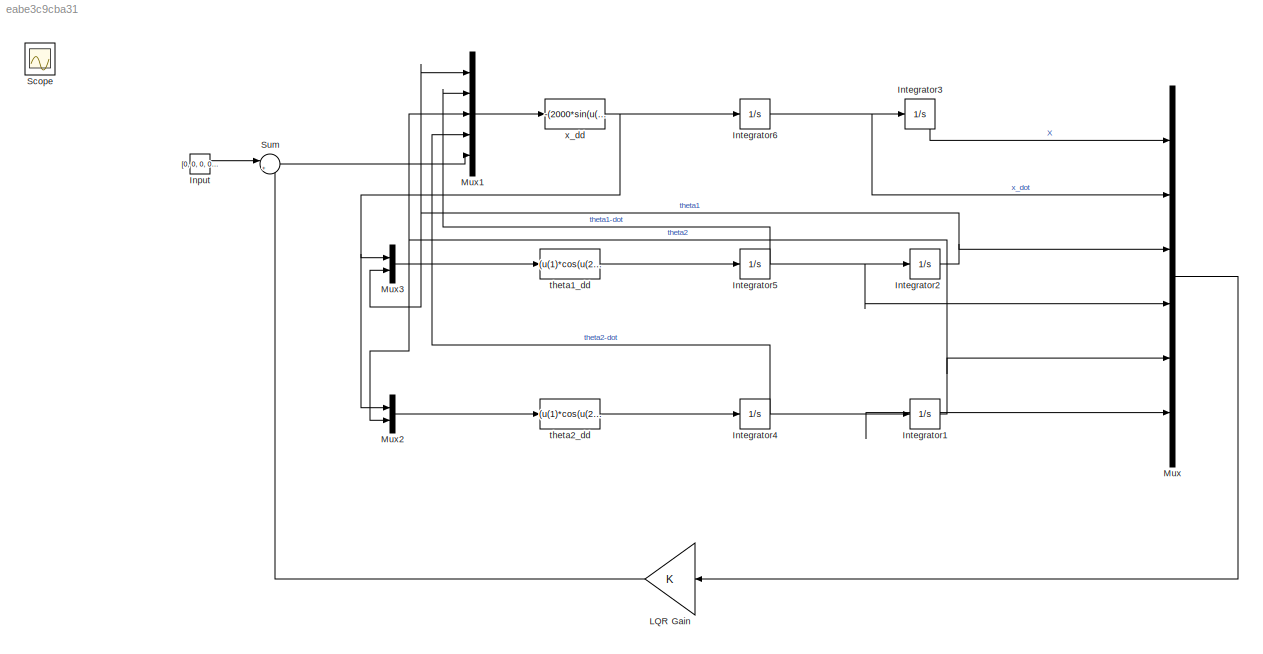
MODEL slx_eabe3c9cba31
KIND model
CONFIG AbsTol = auto
CONFIG EnableMultiTasking = off
CONFIG FixedStep = auto
CONFIG MaxStep = auto
CONFIG MinStep = auto
CONFIG RelTol = 1e-3
CONFIG SampleTimeConstraint = Unconstrained
CONFIG SolverName = VariableStepAuto
CONFIG StartTime = 0.0
CONFIG StopTime = 100.0
BLOCK [Constant] Input
  Value = [0, 0, 0, 0, 0, 0]
BLOCK [Integrator] Integrator1
  InitialCondition = 0.1
  Ports = [1, 1]
BLOCK [Integrator] Integrator2
  InitialCondition = 0.1
  Ports = [1, 1]
BLOCK [Integrator] Integrator3
  InitialCondition = 0.5
  Ports = [1, 1]
BLOCK [Integrator] Integrator4
  Ports = [1, 1]
BLOCK [Integrator] Integrator5
  Ports = [1, 1]
BLOCK [Integrator] Integrator6
  Ports = [1, 1]
BLOCK [Gain] LQR Gain
  Gain = K
  Multiplication = Matrix(K*u)
  NameLocation = top
BLOCK [Mux] Mux
  DisplayOption = bar
  Inputs = 6
  Ports = [6, 1]
BLOCK [Mux] Mux1
  DisplayOption = bar
  Inputs = 5
  Ports = [5, 1]
BLOCK [Mux] Mux2
  DisplayOption = bar
  Inputs = 2
  Ports = [2, 1]
BLOCK [Mux] Mux3
  DisplayOption = bar
  Inputs = 2
  Ports = [2, 1]
BLOCK [Scope] Scope
  Floating = off
  IOType = viewer
  NumInputPorts = 1
  Ports = []
  ScopeSpecificationString = Simulink.scopes.TimeScopeBlockCfg('CurrentConfiguration', extmgr.ConfigurationSet(extmgr.Configuration('Core','General UI',true),extmgr.Configuration('Core','Source UI',true),extmgr.Configuration('Sources','WiredSimulink',true),extmgr.Configuration('Visuals','Time Domain',true,'SerializedDisplays',{struct('MinYLimReal','-0.20709','MaxYLimReal','-0.12982','YLabelReal','','MinYLimMag','0.00000','Max...<+1533ch>
BLOCK [Sum] Sum
  Inputs = |+-
  Ports = [2, 1]
BLOCK [Fcn] theta1_dd
  Expr = (u(1)*cos(u(2)))/20 - sin(u(2))/2
BLOCK [Fcn] theta2_dd
  Expr = (u(1)*cos(u(2)))/10 - sin(u(2))
BLOCK [Fcn] x_dd
  Expr = -(2000*sin(u(1))*u(2)^2 + 1000*sin(u(3))*u(4)^2 - u(5) + 1000*cos(u(1))*sin(u(1)) - 1000*cos(u(3))*sin(u(3)))/(100*sin(u(1))^2 + 100*sin(u(3))^2 + 1000)
LINE Input:1 -> Sum:1
NET Integrator1:1 -> Mux1:3, Mux2:2, Mux:5
NET Integrator2:1 -> Mux1:1, Mux3:2, Mux:3
LINE Integrator3:1 -> Mux:1
NET Integrator4:1 -> Integrator1:1, Mux1:4, Mux:6
NET Integrator5:1 -> Integrator2:1, Mux1:2, Mux:4
NET Integrator6:1 -> Integrator3:1, Mux:2
LINE LQR Gain:1 -> Sum:2
LINE Mux1:1 -> x_dd:1
LINE Mux2:1 -> theta2_dd:1
LINE Mux3:1 -> theta1_dd:1
LINE Mux:1 -> LQR Gain:1
LINE Sum:1 -> Mux1:5
LINE theta1_dd:1 -> Integrator5:1
LINE theta2_dd:1 -> Integrator4:1
NET x_dd:1 -> Integrator6:1, Mux2:1, Mux3:1
note: NET lines group one-source signal fan-out (src -> all destinations, sorted); 1:1 wires keep LINE
